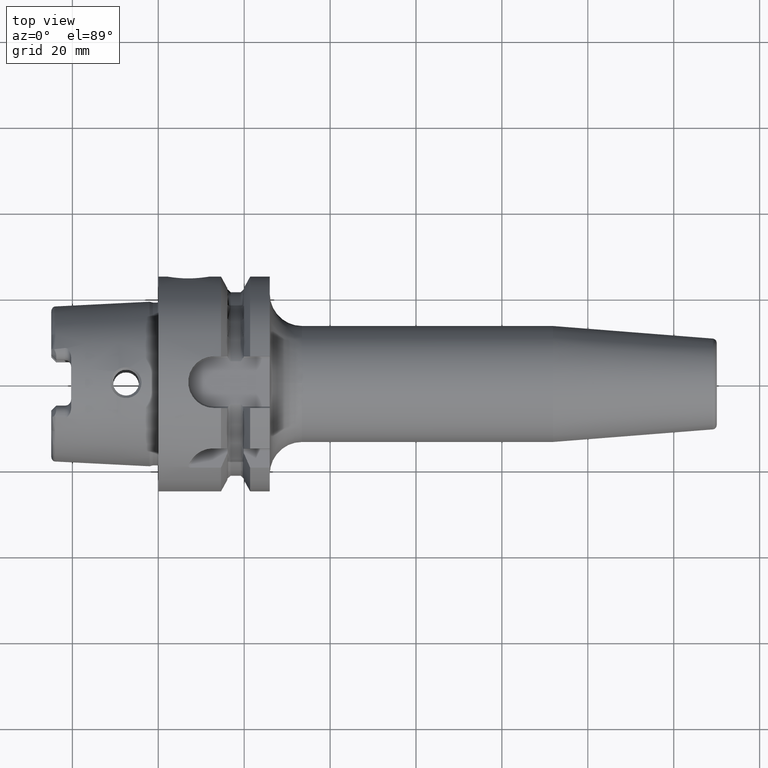
[diagram: clean part render]
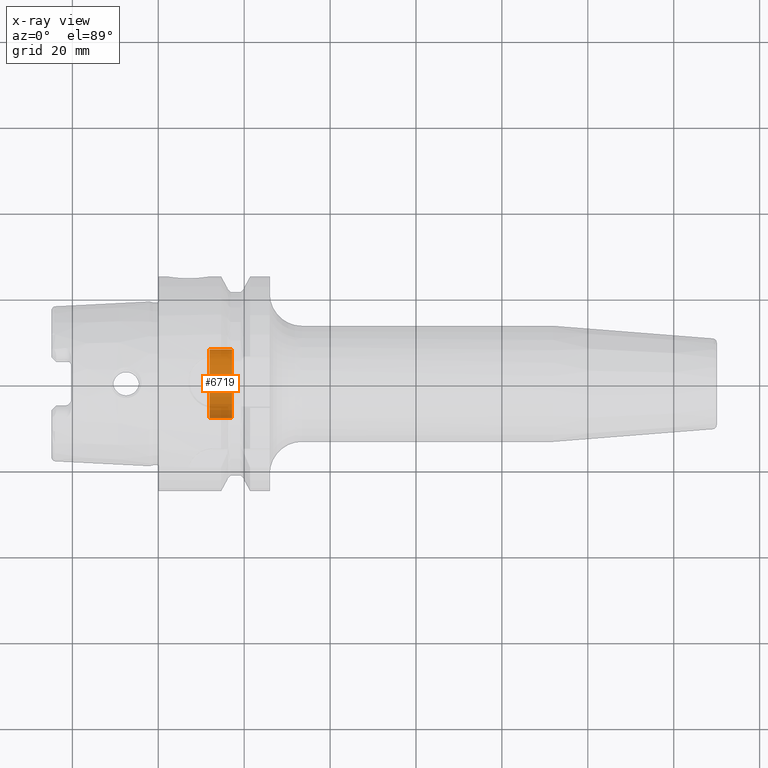
[diagram: x-ray — body ghosted, one internal face saturated and labeled with its STEP entity id]
A machine part, top view, then the same camera in x-ray: the body is ghosted and one INTERNAL B-rep face — a face not visible from any outside direction — is saturated and labeled: STEP entity #6719.
In plain terms, the highlighted cylindrical surface (edge-blend (fillet) strip) has radius 8 mm, axis along (-1, 0, 0).
Its self-contained STEP definition (entity closure, byte-faithful):
#6668=CARTESIAN_POINT('',(1.72E1,0.E0,0.E0));
#6669=DIRECTION('',(-1.E0,0.E0,0.E0));
#6670=DIRECTION('',(0.E0,1.E0,0.E0));
#6671=AXIS2_PLACEMENT_3D('',#6668,#6669,#6670);
#6673=CARTESIAN_POINT('',(1.19625E1,0.E0,0.E0));
#6674=DIRECTION('',(1.E0,0.E0,0.E0));
#6675=DIRECTION('',(0.E0,-1.E0,0.E0));
#6676=AXIS2_PLACEMENT_3D('',#6673,#6674,#6675);
#6678=DIRECTION('',(1.E0,0.E0,0.E0));
#6679=VECTOR('',#6678,5.2375E0);
#6680=CARTESIAN_POINT('',(1.19625E1,8.E0,0.E0));
#6681=LINE('',#6680,#6679);
#6687=DIRECTION('',(1.E0,0.E0,0.E0));
#6688=VECTOR('',#6687,5.2375E0);
#6689=CARTESIAN_POINT('',(1.19625E1,-8.E0,0.E0));
#6690=LINE('',#6689,#6688);
#6696=CARTESIAN_POINT('',(1.19625E1,8.E0,0.E0));
#6697=CARTESIAN_POINT('',(1.72E1,8.E0,0.E0));
#6698=VERTEX_POINT('',#6696);
#6699=VERTEX_POINT('',#6697);
#6700=CARTESIAN_POINT('',(1.19625E1,-8.E0,0.E0));
#6701=CARTESIAN_POINT('',(1.72E1,-8.E0,0.E0));
#6702=VERTEX_POINT('',#6700);
#6703=VERTEX_POINT('',#6701);
#6704=CARTESIAN_POINT('',(2.329132554985E1,0.E0,0.E0));
#6705=DIRECTION('',(-1.E0,0.E0,0.E0));
#6706=DIRECTION('',(0.E0,1.E0,0.E0));
#6707=AXIS2_PLACEMENT_3D('',#6704,#6705,#6706);
#6708=CYLINDRICAL_SURFACE('',#6707,8.E0);
#6710=ORIENTED_EDGE('',*,*,#6709,.T.);
#6712=ORIENTED_EDGE('',*,*,#6711,.T.);
#6714=ORIENTED_EDGE('',*,*,#6713,.F.);
#6716=ORIENTED_EDGE('',*,*,#6715,.T.);
#6717=EDGE_LOOP('',(#6710,#6712,#6714,#6716));
#6718=FACE_OUTER_BOUND('',#6717,.F.);
#6719=ADVANCED_FACE('',(#6718),#6708,.F.);
#6672=CIRCLE('',#6671,8.E0);
#6677=CIRCLE('',#6676,8.E0);
#6709=EDGE_CURVE('',#6698,#6699,#6681,.T.);
#6711=EDGE_CURVE('',#6699,#6703,#6672,.T.);
#6713=EDGE_CURVE('',#6702,#6703,#6690,.T.);
#6715=EDGE_CURVE('',#6702,#6698,#6677,.T.);